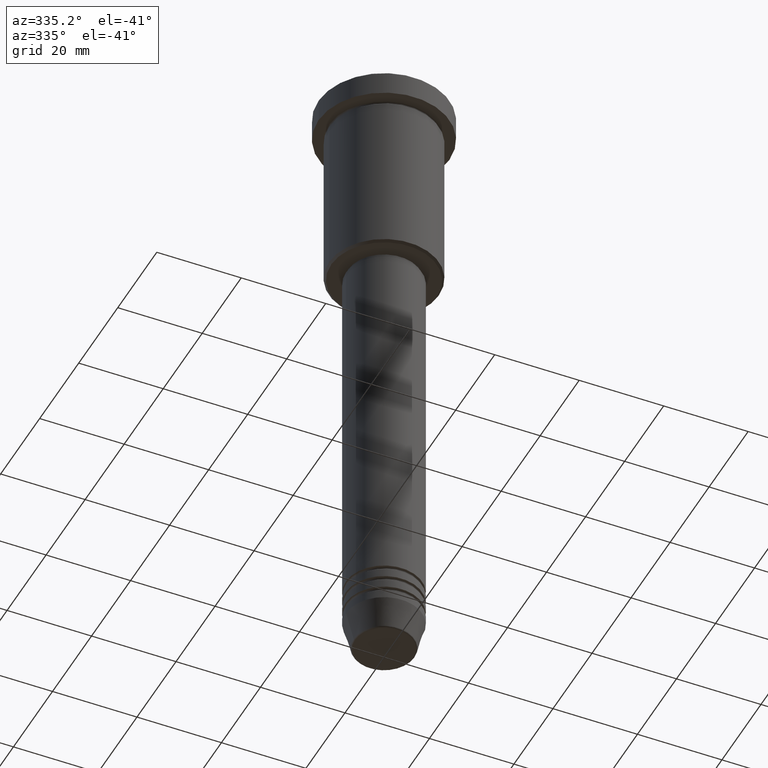
[diagram: clean part render]
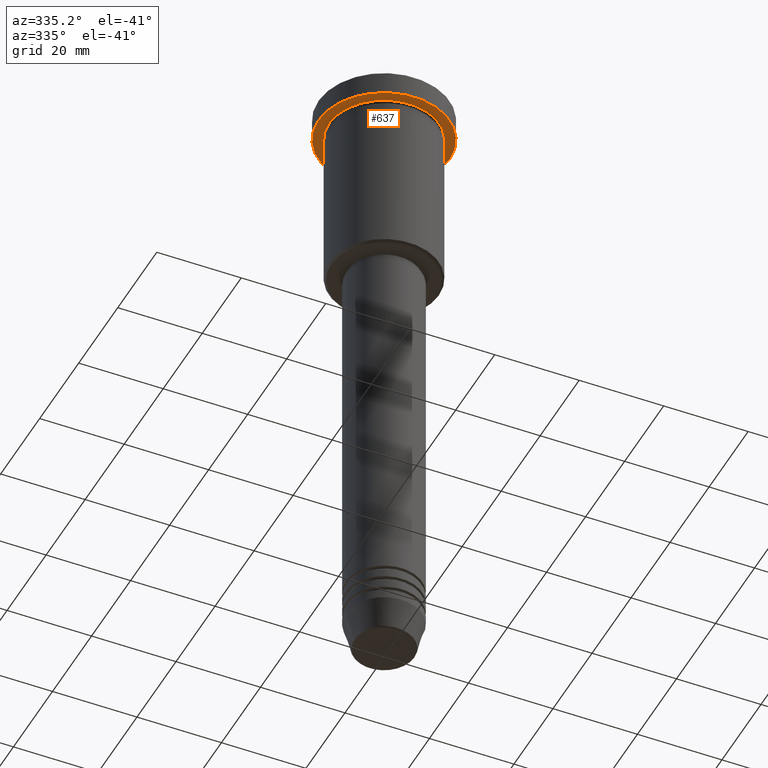
[diagram: same view with one face highlighted and labeled with its STEP entity id]
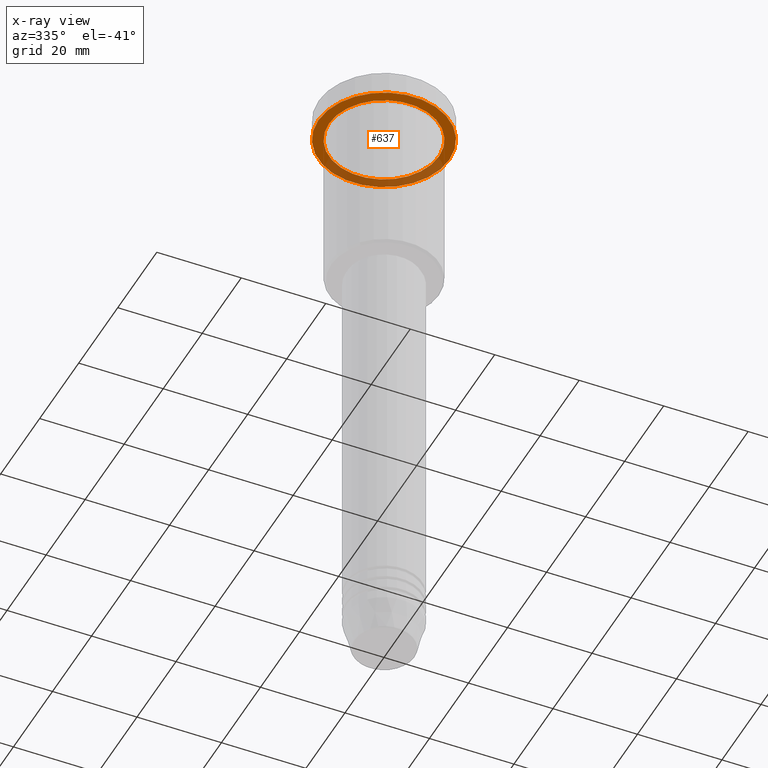
[diagram: x-ray of the same camera — body ghosted, the highlighted face saturated]
A machine part, auxiliary view. The second image highlights one B-rep face of the part: STEP entity #637.
The next image is the same camera in x-ray: the body ghosted, the highlighted face saturated — about 33% of this face is hidden behind the body in this view.
In plain terms, the highlighted planar face has unit normal (0, 0, -1).
Its self-contained STEP definition (entity closure, byte-faithful):
#26 = DIRECTION ( 'NONE',  ( -1.000000000000000000, 0.000000000000000000, 0.000000000000000000 ) ) ;
#29 = ORIENTED_EDGE ( 'NONE', *, *, #614, .T. ) ;
#31 = CARTESIAN_POINT ( 'NONE',  ( 0.000000000000000000, 15.50000000000000000, -5.999999999999995559 ) ) ;
#106 = EDGE_CURVE ( 'NONE', #1139, #542, #148, .T. ) ;
#112 = DIRECTION ( 'NONE',  ( -0.000000000000000000, -0.000000000000000000, 1.000000000000000000 ) ) ;
#119 = DIRECTION ( 'NONE',  ( -0.000000000000000000, -0.000000000000000000, 1.000000000000000000 ) ) ;
#148 = CIRCLE ( 'NONE', #808, 15.50000000000000000 ) ;
#206 = CARTESIAN_POINT ( 'NONE',  ( -15.50000000000000000, 1.898202538678397557E-15, -5.999999999999995559 ) ) ;
#218 = PLANE ( 'NONE',  #287 ) ;
#262 = DIRECTION ( 'NONE',  ( -0.000000000000000000, -0.000000000000000000, 1.000000000000000000 ) ) ;
#287 = AXIS2_PLACEMENT_3D ( 'NONE', #31, #582, #946 ) ;
#296 = VERTEX_POINT ( 'NONE', #956 ) ;
#304 = AXIS2_PLACEMENT_3D ( 'NONE', #938, #112, #755 ) ;
#311 = FACE_BOUND ( 'NONE', #359, .T. ) ;
#334 = CARTESIAN_POINT ( 'NONE',  ( 0.000000000000000000, 0.000000000000000000, -5.999999999999995559 ) ) ;
#359 = EDGE_LOOP ( 'NONE', ( #914, #29 ) ) ;
#374 = ORIENTED_EDGE ( 'NONE', *, *, #106, .F. ) ;
#378 = ORIENTED_EDGE ( 'NONE', *, *, #840, .F. ) ;
#422 = EDGE_LOOP ( 'NONE', ( #378, #374 ) ) ;
#479 = CARTESIAN_POINT ( 'NONE',  ( 15.50000000000000000, 0.000000000000000000, -5.999999999999995559 ) ) ;
#484 = FACE_OUTER_BOUND ( 'NONE', #422, .T. ) ;
#500 = DIRECTION ( 'NONE',  ( -0.000000000000000000, -0.000000000000000000, 1.000000000000000000 ) ) ;
#542 = VERTEX_POINT ( 'NONE', #479 ) ;
#558 = EDGE_CURVE ( 'NONE', #681, #296, #1040, .T. ) ;
#572 = CARTESIAN_POINT ( 'NONE',  ( 0.000000000000000000, 0.000000000000000000, -5.999999999999995559 ) ) ;
#582 = DIRECTION ( 'NONE',  ( 0.000000000000000000, 0.000000000000000000, -1.000000000000000000 ) ) ;
#591 = CIRCLE ( 'NONE', #1098, 15.50000000000000000 ) ;
#609 = AXIS2_PLACEMENT_3D ( 'NONE', #572, #119, #26 ) ;
#614 = EDGE_CURVE ( 'NONE', #296, #681, #986, .T. ) ;
#631 = DIRECTION ( 'NONE',  ( 1.000000000000000000, 0.000000000000000000, 0.000000000000000000 ) ) ;
#637 = ADVANCED_FACE ( 'NONE', ( #311, #484 ), #218, .T. ) ;
#681 = VERTEX_POINT ( 'NONE', #829 ) ;
#718 = CARTESIAN_POINT ( 'NONE',  ( 0.000000000000000000, 0.000000000000000000, -5.999999999999995559 ) ) ;
#755 = DIRECTION ( 'NONE',  ( -1.000000000000000000, 0.000000000000000000, 0.000000000000000000 ) ) ;
#808 = AXIS2_PLACEMENT_3D ( 'NONE', #718, #262, #631 ) ;
#829 = CARTESIAN_POINT ( 'NONE',  ( -13.00000000000000000, 0.000000000000000000, -5.999999999999994671 ) ) ;
#840 = EDGE_CURVE ( 'NONE', #542, #1139, #591, .T. ) ;
#867 = DIRECTION ( 'NONE',  ( 1.000000000000000000, 0.000000000000000000, 0.000000000000000000 ) ) ;
#914 = ORIENTED_EDGE ( 'NONE', *, *, #558, .T. ) ;
#938 = CARTESIAN_POINT ( 'NONE',  ( 0.000000000000000000, 0.000000000000000000, -5.999999999999995559 ) ) ;
#946 = DIRECTION ( 'NONE',  ( -1.000000000000000000, 0.000000000000000000, -0.000000000000000000 ) ) ;
#956 = CARTESIAN_POINT ( 'NONE',  ( 13.00000000000000000, 1.592040838891559095E-15, -5.999999999999994671 ) ) ;
#986 = CIRCLE ( 'NONE', #304, 13.00000000000000000 ) ;
#1040 = CIRCLE ( 'NONE', #609, 13.00000000000000000 ) ;
#1098 = AXIS2_PLACEMENT_3D ( 'NONE', #334, #500, #867 ) ;
#1139 = VERTEX_POINT ( 'NONE', #206 ) ;